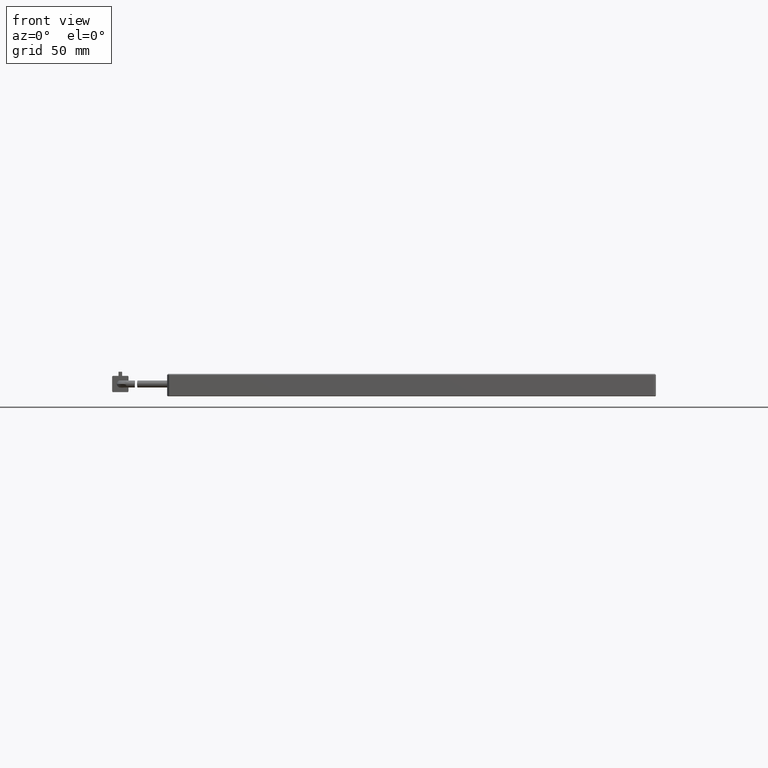
[diagram: clean part render]
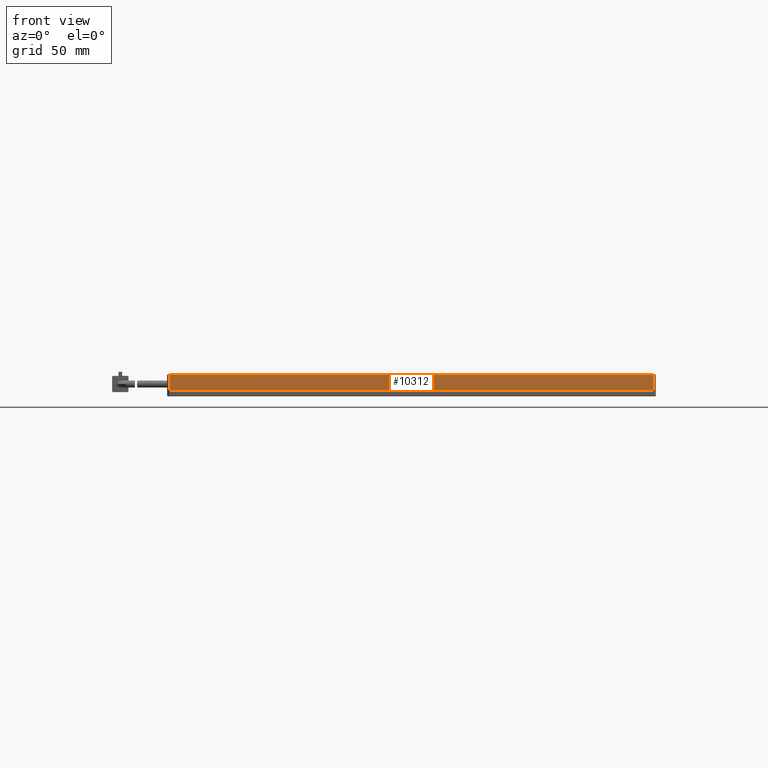
[diagram: same view with one face highlighted and labeled with its STEP entity id]
A machine part, front view. The second image highlights one B-rep face of the part: STEP entity #10312.
In plain terms, the highlighted planar face has unit normal (0, 1, 0).
Its self-contained STEP definition (entity closure, byte-faithful):
#76 = DIRECTION ( 'NONE',  ( -1.000000000000000000, 0.0000000000000000000, -0.0000000000000000000 ) ) ;
#955 = VECTOR ( 'NONE', #21250, 1000.000000000000000 ) ;
#1345 = EDGE_CURVE ( 'NONE', #11747, #7797, #9125, .T. ) ;
#1446 = VERTEX_POINT ( 'NONE', #10417 ) ;
#1463 = CARTESIAN_POINT ( 'NONE',  ( -133.0546296296295700, -101.4579629629629400, 5.000000000000000900 ) ) ;
#2466 = CARTESIAN_POINT ( 'NONE',  ( -134.0546296296296000, -101.4579629629629400, 5.000000000000000900 ) ) ;
#4024 = AXIS2_PLACEMENT_3D ( 'NONE', #2466, #21121, #4164 ) ;
#4164 = DIRECTION ( 'NONE',  ( 0.0000000000000000000, -0.0000000000000000000, 1.000000000000000000 ) ) ;
#5343 = CARTESIAN_POINT ( 'NONE',  ( -133.0546296296296000, -101.4579629629629400, 4.500000000000057700 ) ) ;
#5614 = ORIENTED_EDGE ( 'NONE', *, *, #16634, .T. ) ;
#6472 = DIRECTION ( 'NONE',  ( -1.000000000000000000, 0.0000000000000000000, -0.0000000000000000000 ) ) ;
#6611 = EDGE_CURVE ( 'NONE', #19557, #1446, #15032, .T. ) ;
#7462 = CARTESIAN_POINT ( 'NONE',  ( 104.9453703703704400, -101.4579629629629200, 4.500000000000054200 ) ) ;
#7797 = VERTEX_POINT ( 'NONE', #5343 ) ;
#8438 = DIRECTION ( 'NONE',  ( 0.0000000000000000000, -0.0000000000000000000, 1.000000000000000000 ) ) ;
#8536 = CARTESIAN_POINT ( 'NONE',  ( -134.0546296296296000, -101.4579629629629400, 4.500000000000056000 ) ) ;
#8817 = EDGE_CURVE ( 'NONE', #1446, #11747, #18410, .T. ) ;
#9125 = LINE ( 'NONE', #1463, #11778 ) ;
#9293 = PLANE ( 'NONE',  #4024 ) ;
#10210 = VECTOR ( 'NONE', #76, 1000.000000000000000 ) ;
#10312 = ADVANCED_FACE ( 'NONE', ( #19179 ), #9293, .F. ) ;
#10417 = CARTESIAN_POINT ( 'NONE',  ( 104.9453703703704100, -101.4579629629629200, -3.000000000000001300 ) ) ;
#11747 = VERTEX_POINT ( 'NONE', #21819 ) ;
#11778 = VECTOR ( 'NONE', #8438, 1000.000000000000000 ) ;
#12953 = EDGE_LOOP ( 'NONE', ( #5614, #13481, #18408, #17641 ) ) ;
#13481 = ORIENTED_EDGE ( 'NONE', *, *, #1345, .F. ) ;
#13618 = VECTOR ( 'NONE', #6472, 1000.000000000000000 ) ;
#14688 = CARTESIAN_POINT ( 'NONE',  ( 104.9453703703704100, -101.4579629629629400, 5.000000000000000900 ) ) ;
#14736 = LINE ( 'NONE', #8536, #10210 ) ;
#15032 = LINE ( 'NONE', #14688, #955 ) ;
#16634 = EDGE_CURVE ( 'NONE', #19557, #7797, #14736, .T. ) ;
#17641 = ORIENTED_EDGE ( 'NONE', *, *, #6611, .F. ) ;
#18408 = ORIENTED_EDGE ( 'NONE', *, *, #8817, .F. ) ;
#18410 = LINE ( 'NONE', #21496, #13618 ) ;
#19179 = FACE_OUTER_BOUND ( 'NONE', #12953, .T. ) ;
#19557 = VERTEX_POINT ( 'NONE', #7462 ) ;
#21121 = DIRECTION ( 'NONE',  ( 0.0000000000000000000, 1.000000000000000000, 0.0000000000000000000 ) ) ;
#21250 = DIRECTION ( 'NONE',  ( -0.0000000000000000000, 0.0000000000000000000, -1.000000000000000000 ) ) ;
#21496 = CARTESIAN_POINT ( 'NONE',  ( -134.0546296296296000, -101.4579629629629400, -2.999999999999998700 ) ) ;
#21819 = CARTESIAN_POINT ( 'NONE',  ( -133.0546296296296000, -101.4579629629629400, -3.000000000000001300 ) ) ;